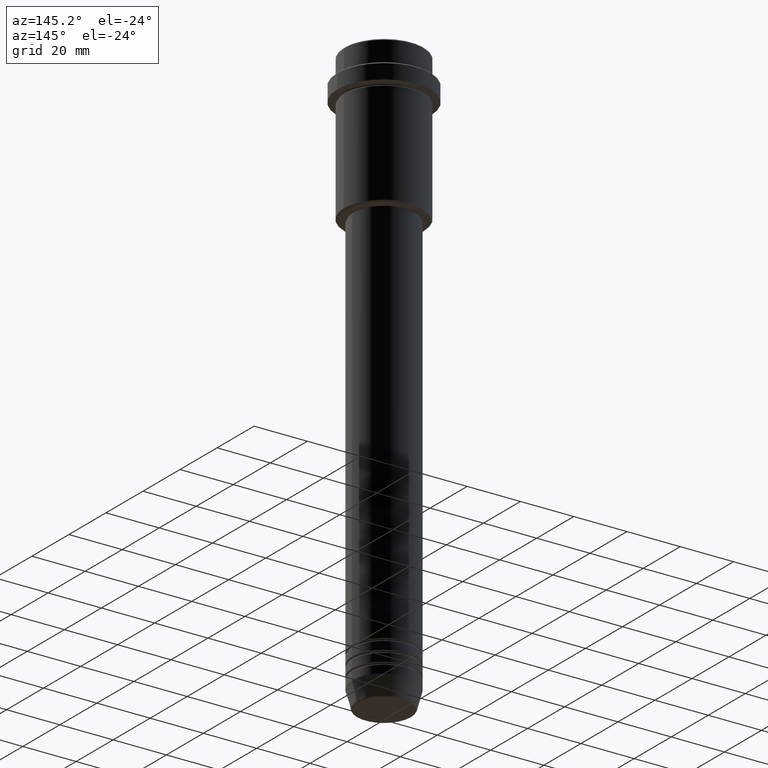
[diagram: clean part render]
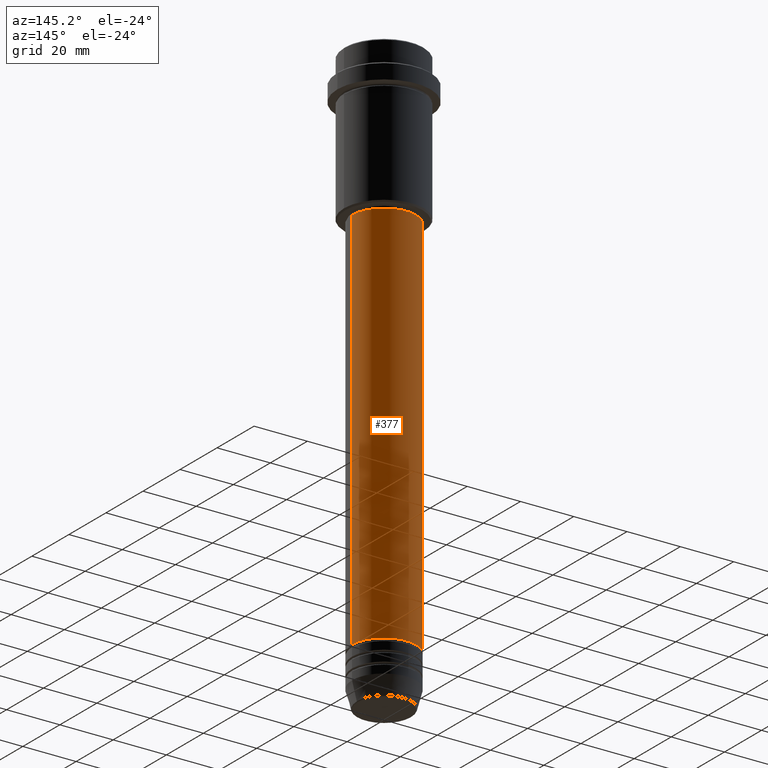
[diagram: same view with one face highlighted and labeled with its STEP entity id]
A machine part, auxiliary view. The second image highlights one B-rep face of the part: STEP entity #377.
In plain terms, the highlighted cylindrical surface (partial cylindrical patch) has radius 12 mm, axis along (-0, -0, 1).
Its self-contained STEP definition (entity closure, byte-faithful):
#97 = DIRECTION ( 'NONE',  ( -0.000000000000000000, -0.000000000000000000, 1.000000000000000000 ) ) ;
#122 = CIRCLE ( 'NONE', #822, 11.99999999999999822 ) ;
#127 = CARTESIAN_POINT ( 'NONE',  ( 11.99999999999999822, 0.000000000000000000, -56.00000000000002132 ) ) ;
#155 = DIRECTION ( 'NONE',  ( -0.000000000000000000, -0.000000000000000000, 1.000000000000000000 ) ) ;
#163 = CARTESIAN_POINT ( 'NONE',  ( -12.00000000000000000, 1.469576158976823947E-15, 0.000000000000000000 ) ) ;
#168 = AXIS2_PLACEMENT_3D ( 'NONE', #1288, #427, #1172 ) ;
#202 = DIRECTION ( 'NONE',  ( -0.000000000000000000, -0.000000000000000000, 1.000000000000000000 ) ) ;
#221 = CARTESIAN_POINT ( 'NONE',  ( -12.00000000000000000, 1.469576158976823947E-15, -200.9999999999999147 ) ) ;
#309 = VERTEX_POINT ( 'NONE', #221 ) ;
#348 = CIRCLE ( 'NONE', #369, 12.00000000000000000 ) ;
#362 = EDGE_CURVE ( 'NONE', #1153, #1240, #122, .T. ) ;
#369 = AXIS2_PLACEMENT_3D ( 'NONE', #1106, #155, #688 ) ;
#377 = ADVANCED_FACE ( 'NONE', ( #1294 ), #1041, .T. ) ;
#378 = LINE ( 'NONE', #163, #1262 ) ;
#392 = DIRECTION ( 'NONE',  ( 1.000000000000000000, 0.000000000000000000, 0.000000000000000000 ) ) ;
#427 = DIRECTION ( 'NONE',  ( -0.000000000000000000, -0.000000000000000000, 1.000000000000000000 ) ) ;
#488 = EDGE_CURVE ( 'NONE', #491, #1153, #742, .T. ) ;
#491 = VERTEX_POINT ( 'NONE', #1408 ) ;
#494 = ORIENTED_EDGE ( 'NONE', *, *, #362, .F. ) ;
#526 = EDGE_LOOP ( 'NONE', ( #1229, #603, #494, #1080 ) ) ;
#586 = DIRECTION ( 'NONE',  ( -0.000000000000000000, -0.000000000000000000, 1.000000000000000000 ) ) ;
#603 = ORIENTED_EDGE ( 'NONE', *, *, #677, .T. ) ;
#623 = CARTESIAN_POINT ( 'NONE',  ( 12.00000000000000000, 0.000000000000000000, 0.000000000000000000 ) ) ;
#677 = EDGE_CURVE ( 'NONE', #309, #1240, #378, .T. ) ;
#688 = DIRECTION ( 'NONE',  ( 1.000000000000000000, 0.000000000000000000, 0.000000000000000000 ) ) ;
#742 = LINE ( 'NONE', #623, #1047 ) ;
#751 = EDGE_CURVE ( 'NONE', #491, #309, #348, .T. ) ;
#822 = AXIS2_PLACEMENT_3D ( 'NONE', #1161, #97, #392 ) ;
#1041 = CYLINDRICAL_SURFACE ( 'NONE', #168, 12.00000000000000000 ) ;
#1047 = VECTOR ( 'NONE', #202, 1000.000000000000000 ) ;
#1080 = ORIENTED_EDGE ( 'NONE', *, *, #488, .F. ) ;
#1106 = CARTESIAN_POINT ( 'NONE',  ( 0.000000000000000000, 0.000000000000000000, -200.9999999999999147 ) ) ;
#1153 = VERTEX_POINT ( 'NONE', #127 ) ;
#1161 = CARTESIAN_POINT ( 'NONE',  ( 0.000000000000000000, 0.000000000000000000, -56.00000000000002132 ) ) ;
#1172 = DIRECTION ( 'NONE',  ( 1.000000000000000000, 0.000000000000000000, 0.000000000000000000 ) ) ;
#1175 = CARTESIAN_POINT ( 'NONE',  ( -11.99999999999999822, 1.469576158976823750E-15, -56.00000000000002132 ) ) ;
#1229 = ORIENTED_EDGE ( 'NONE', *, *, #751, .T. ) ;
#1240 = VERTEX_POINT ( 'NONE', #1175 ) ;
#1262 = VECTOR ( 'NONE', #586, 1000.000000000000000 ) ;
#1288 = CARTESIAN_POINT ( 'NONE',  ( 0.000000000000000000, 0.000000000000000000, 0.000000000000000000 ) ) ;
#1294 = FACE_OUTER_BOUND ( 'NONE', #526, .T. ) ;
#1408 = CARTESIAN_POINT ( 'NONE',  ( 12.00000000000000000, 0.000000000000000000, -200.9999999999999147 ) ) ;